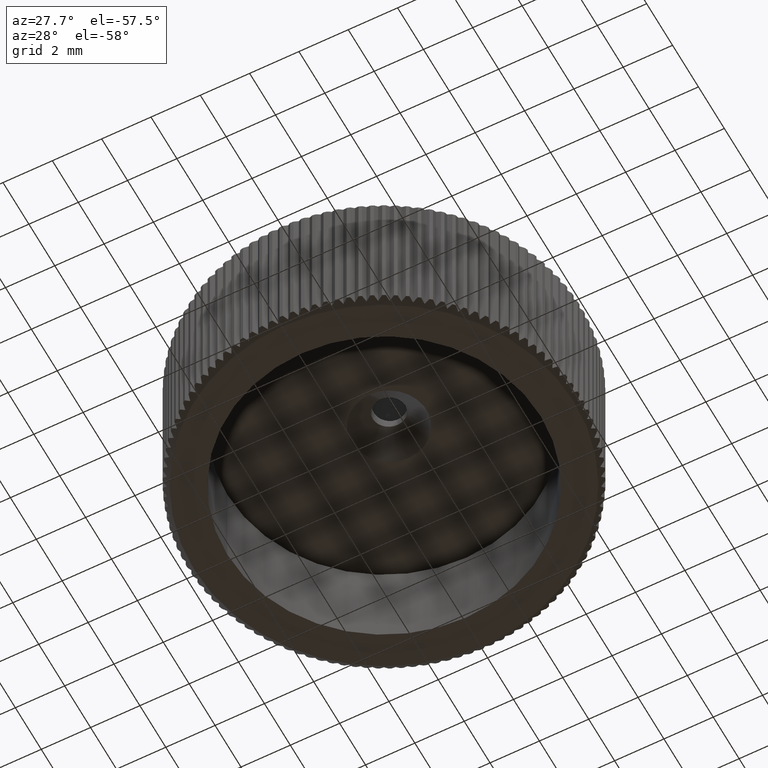
[diagram: clean part render]
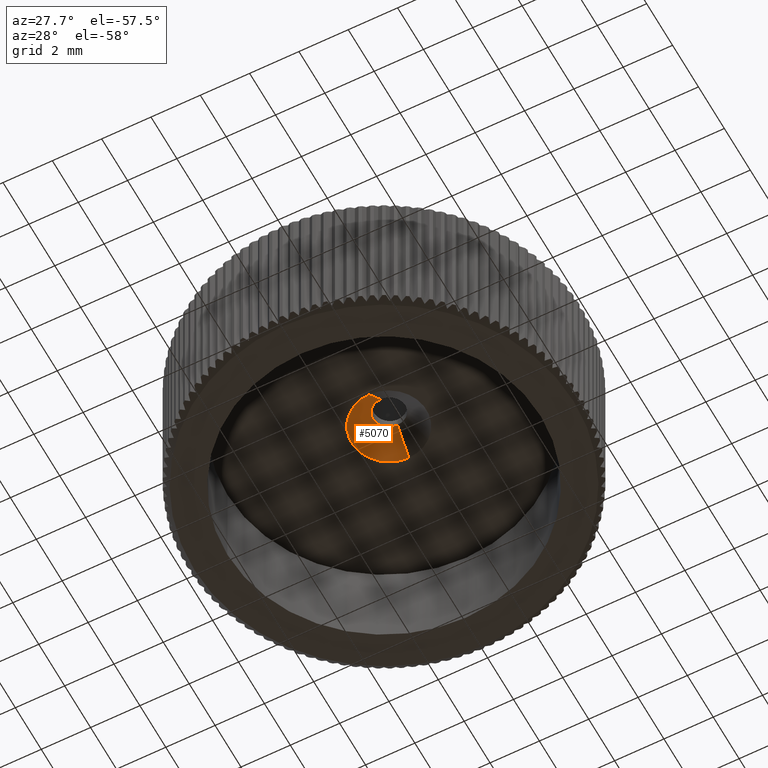
[diagram: same view with one face highlighted and labeled with its STEP entity id]
A machine part, auxiliary view. The second image highlights one B-rep face of the part: STEP entity #5070.
In plain terms, the highlighted face is a freeform B-spline surface patch.
Its self-contained STEP definition (entity closure, byte-faithful):
#199 = CARTESIAN_POINT ( 'NONE',  ( -0.4831640360200000206, -0.04285534067000001252, 5.404672919619999405 ) ) ;
#264 = CARTESIAN_POINT ( 'NONE',  ( -0.3257477400000000078, -0.1843639500000000264, 5.383029033000000574 ) ) ;
#277 = CARTESIAN_POINT ( 'NONE',  ( -0.9258160050000057151, -0.8248952930000076345, 4.499999999999990230 ) ) ;
#330 = CARTESIAN_POINT ( 'NONE',  ( 0.01361364416000012886, -0.2710618730000000642, 5.374928842999999290 ) ) ;
#342 = CARTESIAN_POINT ( 'NONE',  ( -1.317156749000008453, 1.147432791000004837, 4.499999999999989342 ) ) ;
#400 = CARTESIAN_POINT ( 'NONE',  ( -0.5099202332500000212, -0.009948397839999999562, 5.407819684709999741 ) ) ;
#402 = CARTESIAN_POINT ( 'NONE',  ( -0.08647806103030467040, 1.040871319354104596, 5.497502796740137754 ) ) ;
#412 = CARTESIAN_POINT ( 'NONE',  ( -0.3935281660000025661, 1.857795604000008982, 4.499999999999989342 ) ) ;
#470 = CARTESIAN_POINT ( 'NONE',  ( -0.3964935630000001043, -0.1366591860000000158, 5.387486089999999450 ) ) ;
#482 = CARTESIAN_POINT ( 'NONE',  ( -1.364208724000008921, -0.2893749150000043402, 4.499999999999990230 ) ) ;
#601 = CARTESIAN_POINT ( 'NONE',  ( -1.002973238999999905, -0.7614154650000001245, 4.500000000000000888 ) ) ;
#673 = CARTESIAN_POINT ( 'NONE',  ( -1.517755796999999740, 0.4844908510000001112, 4.500000000000000888 ) ) ;
#813 = CARTESIAN_POINT ( 'NONE',  ( -1.002973238999999905, 1.531224911999999660, 4.500000000000000888 ) ) ;
#847 = LINE ( 'NONE', #5192, #7655 ) ;
#923 = VERTEX_POINT ( 'NONE', #13335 ) ;
#1130 = CARTESIAN_POINT ( 'NONE',  ( 4.446201336204454859E-10, -0.7038562900000000511, 4.937464421499999645 ) ) ;
#1151 = B_SPLINE_CURVE_WITH_KNOTS ( 'NONE', 3,
 ( #5729, #402, #4804, #13310, #5937, #10227, #4672, #8953, #13107, #7908, #5801, #4741 ),
 .UNSPECIFIED., .F., .F.,
 ( 4, 2, 2, 2, 2, 4 ),
 ( 5.232432001693966757E-14, 0.0002557314238437535868, 0.0005114628476351827093, 0.001022925695218040738, 0.001534388542800898658, 0.002045851390383757011 ),
 .UNSPECIFIED. ) ;
#1249 = CARTESIAN_POINT ( 'NONE',  ( -0.2066439158800000286, 0.9991548433899999360, 5.504316366400000327 ) ) ;
#1320 = CARTESIAN_POINT ( 'NONE',  ( -0.1662839603700000390, 1.011512219589999706, 5.505498055290000359 ) ) ;
#1333 = CARTESIAN_POINT ( 'NONE',  ( -1.143457594000007127, -0.6205794140000063797, 4.499999999999990230 ) ) ;
#1380 = CARTESIAN_POINT ( 'NONE',  ( -0.04197468998000000728, 1.032215431659999849, 5.507477823960000407 ) ) ;
#1446 = CARTESIAN_POINT ( 'NONE',  ( -0.6458100890000000316, 0.4707692529999999986, 5.444238145000001694 ) ) ;
#1457 = CARTESIAN_POINT ( 'NONE',  ( -0.4890441700000031089, 1.828748604000008937, 4.499999999999989342 ) ) ;
#1518 = CARTESIAN_POINT ( 'NONE',  ( -0.2066439158800000286, -0.2293453953800000666, 5.386839590000000122 ) ) ;
#1590 = CARTESIAN_POINT ( 'NONE',  ( -1.517755796999999740, 0.2853185970000001181, 4.500000000000000888 ) ) ;
#1657 = CARTESIAN_POINT ( 'NONE',  ( -1.317156749000000238, 1.147432790999999952, 4.500000000000000888 ) ) ;
#1722 = CARTESIAN_POINT ( 'NONE',  ( -0.4890441700000000558, -1.058939156999999964, 4.500000000000000888 ) ) ;
#1792 = CARTESIAN_POINT ( 'NONE',  ( -1.143457594000000244, -0.6205794140000001624, 4.500000000000000888 ) ) ;
#1858 = CARTESIAN_POINT ( 'NONE',  ( -1.364208724000000261, -0.2893749150000001769, 4.500000000000000888 ) ) ;
#2226 = CARTESIAN_POINT ( 'NONE',  ( 0.01343190079360012841, -0.2624059846600000356, 5.383678131429999070 ) ) ;
#2295 = CARTESIAN_POINT ( 'NONE',  ( -0.6292107749999999999, 0.2148237840000000176, 5.420325153000000284 ) ) ;
#2362 = CARTESIAN_POINT ( 'NONE',  ( -0.5565600112300002067, 0.7093047243500002486, 5.476599109110000363 ) ) ;
#2372 = CARTESIAN_POINT ( 'NONE',  ( -0.4890441700000031089, -1.058939157000008846, 4.499999999999991118 ) ) ;
#2428 = CARTESIAN_POINT ( 'NONE',  ( -0.08394764348000001430, 1.028042856660000393, 5.507078817399999160 ) ) ;
#2493 = CARTESIAN_POINT ( 'NONE',  ( -0.6458100890000000316, 0.2990401940000000369, 5.428193495000001256 ) ) ;
#2507 = CARTESIAN_POINT ( 'NONE',  ( -1.364208724000008921, 1.059184363000004181, 4.499999999999989342 ) ) ;
#2554 = CARTESIAN_POINT ( 'NONE',  ( -0.4831640360200000206, 0.8126647876700000550, 5.486483036779999267 ) ) ;
#2568 = CARTESIAN_POINT ( 'NONE',  ( -1.440238309000008821, -0.1053637470000030607, 4.499999999999990230 ) ) ;
#2700 = CARTESIAN_POINT ( 'NONE',  ( -0.04254263800000001455, 1.040871319999999933, 5.497502796000000025 ) ) ;
#2769 = CARTESIAN_POINT ( 'NONE',  ( -0.1986707680000000253, -1.126842736000000178, 4.500000000000000888 ) ) ;
#2840 = CARTESIAN_POINT ( 'NONE',  ( -1.143457594000000244, 1.390388861000000364, 4.500000000000000888 ) ) ;
#2903 = CARTESIAN_POINT ( 'NONE',  ( -0.9258160049999999419, -0.8248952930000001960, 4.500000000000000888 ) ) ;
#3300 = ORIENTED_EDGE ( 'NONE', *, *, #5628, .F. ) ;
#3408 = CARTESIAN_POINT ( 'NONE',  ( 0.000000000000000000, -0.2624059846600000356, 5.383678131429999070 ) ) ;
#3476 = CARTESIAN_POINT ( 'NONE',  ( -0.6371884667099999566, 0.4696362169800000763, 5.453680526450001231 ) ) ;
#3546 = CARTESIAN_POINT ( 'NONE',  ( -0.6208107550299999389, 0.5527413389300001034, 5.461627551870000374 ) ) ;
#3559 = CARTESIAN_POINT ( 'NONE',  ( -0.9258160050000057151, 1.594704740000007392, 4.499999999999989342 ) ) ;
#3616 = CARTESIAN_POINT ( 'NONE',  ( -0.4897015960000000723, -0.04857538100000000775, 5.395715761999999138 ) ) ;
#3630 = CARTESIAN_POINT ( 'NONE',  ( -0.6725958260000044486, -0.9827192350000085730, 4.499999999999990230 ) ) ;
#3681 = CARTESIAN_POINT ( 'NONE',  ( -0.5640906720000001817, 0.7136426260000001687, 5.466929810999999972 ) ) ;
#3752 = CARTESIAN_POINT ( 'NONE',  ( -1.469212771999999889, -0.009608623000000001899, 4.500000000000000888 ) ) ;
#3822 = CARTESIAN_POINT ( 'NONE',  ( 0.01589399040000015126, -1.136650707000000038, 4.500000000000000888 ) ) ;
#3963 = CARTESIAN_POINT ( 'NONE',  ( -0.1986707680000000253, 1.896652183000000269, 4.500000000000000888 ) ) ;
#4465 = CARTESIAN_POINT ( 'NONE',  ( -0.3964935630000001043, 0.9064686330000001346, 5.484945549999999059 ) ) ;
#4530 = CARTESIAN_POINT ( 'NONE',  ( -0.5099202332500000212, 0.7797578448399999917, 5.483336271690000707 ) ) ;
#4541 = CARTESIAN_POINT ( 'NONE',  ( -1.469212772000008993, 0.7794180700000024054, 4.499999999999990230 ) ) ;
#4594 = CARTESIAN_POINT ( 'NONE',  ( -0.2880485040000000385, -0.2046995820000000188, 5.381129074000000401 ) ) ;
#4670 = CARTESIAN_POINT ( 'NONE',  ( -0.4295372199999999974, -0.1092920290000000266, 5.390043004000000693 ) ) ;
#4672 = CARTESIAN_POINT ( 'NONE',  ( -0.6499199908030132145, 0.5552829593366771510, 5.452133992614463409 ) ) ;
#4739 = CARTESIAN_POINT ( 'NONE',  ( -0.4238028598100000433, -0.1027707946400000377, 5.398943434040000433 ) ) ;
#4741 = CARTESIAN_POINT ( 'NONE',  ( 6.665951152529660306E-11, -0.2710618728847094538, 5.374928843358858011 ) ) ;
#4752 = CARTESIAN_POINT ( 'NONE',  ( -1.517755797000009066, 0.2853185969999994520, 4.499999999999990230 ) ) ;
#4804 = CARTESIAN_POINT ( 'NONE',  ( -0.1713683753960740797, 1.023528020456982546, 5.495883197922583285 ) ) ;
#4860 = EDGE_LOOP ( 'NONE', ( #8272, #11022, #8404, #3300 ) ) ;
#4884 = B_SPLINE_SURFACE_WITH_KNOTS ( 'NONE', 1, 3, ( 
 ( #11861, #2226, #6517, #3408, #8816, #7972, #7768, #1518, #11001, #11999, #10088, #4739, #199, #400, #13046, #8951, #8750, #13241, #12062, #13104, #7708, #3476, #3546, #10870, #6714, #2362, #4530, #2554, #6647, #5727, #7839, #10940, #1249, #1320, #2428, #1380, #6849 ),
 ( #11136, #330, #8880, #5661, #9946, #5596, #9881, #10014, #4594, #264, #470, #4670, #3616, #11065, #7906, #13172, #12131, #2295, #2493, #12200, #6779, #1446, #5799, #9023, #13308, #3681, #9816, #6586, #5530, #4465, #7132, #10296, #13527, #6922, #12406, #2700, #9084 ),
 ( #11212, #10225, #3822, #9364, #8112, #2769, #7065, #1722, #11420, #11489, #2903, #601, #1792, #7198, #12474, #1858, #11348, #3752, #6146, #1590, #673, #6005, #6997, #11278, #10435, #1657, #4952, #2840, #813, #8249, #5021, #9230, #10162, #8045, #3963, #6077, #12541 ) ),
 .UNSPECIFIED., .F., .F., .F.,
 ( 2, 1, 2 ),
 ( 4, 3, 2, 2, 2, 2, 2, 2, 2, 2, 2, 2, 2, 2, 2, 2, 2, 4 ),
 ( -0.01000000000000000021, 0.000000000000000000, 1.000000000000000000 ),
 ( -3.173008580125687761, -3.141592653589790007, -2.945243112740429936, -2.748893571891070753, -2.552544031041709793, -2.356194490192339952, -2.159844949342979881, -1.963495408493619809, -1.767145867644260182, -1.570796326794899889, -1.374446785945530047, -1.178097245096169976, -0.9817477042468100157, -0.7853981633974479459, -0.5890486225480863203, -0.3926990816987240285, -0.1963495408493620697, 0.000000000000000000 ),
 .UNSPECIFIED. ) ;
#4952 = CARTESIAN_POINT ( 'NONE',  ( -1.206778899000000127, 1.313038466999999931, 4.500000000000000888 ) ) ;
#5021 = CARTESIAN_POINT ( 'NONE',  ( -0.7606238790000001693, 1.705358915000000142, 4.500000000000000888 ) ) ;
#5070 = ADVANCED_FACE ( 'NONE', ( #9673 ), #4884, .T. ) ;
#5192 = CARTESIAN_POINT ( 'NONE',  ( 1.946543688953417256E-10, 1.473665736999999920, 4.998751398000002233 ) ) ;
#5472 = CARTESIAN_POINT ( 'NONE',  ( 1.635448778725282072E-10, 1.906460154000000351, 4.500000000000000888 ) ) ;
#5530 = CARTESIAN_POINT ( 'NONE',  ( -0.4295372199999999974, 0.8791014760000002148, 5.482388635999999593 ) ) ;
#5540 = CARTESIAN_POINT ( 'NONE',  ( -1.507972318000009304, 0.5840728550000013897, 4.499999999999990230 ) ) ;
#5596 = CARTESIAN_POINT ( 'NONE',  ( -0.08508351600000001180, -0.2668335010000000285, 5.375323900000000599 ) ) ;
#5611 = CARTESIAN_POINT ( 'NONE',  ( -1.507972318000009304, 0.1857365919999988124, 4.499999999999990230 ) ) ;
#5628 = EDGE_CURVE ( 'NONE', #923, #10312, #13065, .T. ) ;
#5661 = CARTESIAN_POINT ( 'NONE',  ( 0.000000000000000000, -0.2710618730000000642, 5.374928842999999290 ) ) ;
#5674 = CARTESIAN_POINT ( 'NONE',  ( -1.517755797000009066, 0.4844908510000006663, 4.499999999999990230 ) ) ;
#5727 = CARTESIAN_POINT ( 'NONE',  ( -0.3912003385800000843, 0.8995862719300000698, 5.494795005499999441 ) ) ;
#5729 = CARTESIAN_POINT ( 'NONE',  ( -7.495025782752232543E-11, 1.040871319357137947, 5.497502796547943937 ) ) ;
#5739 = CARTESIAN_POINT ( 'NONE',  ( -0.1986707680000012743, 1.896652183000009595, 4.499999999999989342 ) ) ;
#5799 = CARTESIAN_POINT ( 'NONE',  ( -0.6292107749999999999, 0.5549856630000000735, 5.452106487000000001 ) ) ;
#5801 = CARTESIAN_POINT ( 'NONE',  ( -0.1729579338301115710, -0.2710618728303192393, 5.374928843171509207 ) ) ;
#5880 = CARTESIAN_POINT ( 'NONE',  ( 1.635448778725282072E-10, 1.906460154000000351, 4.500000000000000888 ) ) ;
#5937 = CARTESIAN_POINT ( 'NONE',  ( -0.4014920855287459900, 0.9078210053432419491, 5.485072900179750022 ) ) ;
#6005 = CARTESIAN_POINT ( 'NONE',  ( -1.507972317999999756, 0.5840728550000000574, 4.500000000000000888 ) ) ;
#6077 = CARTESIAN_POINT ( 'NONE',  ( -0.09933744000000002683, 1.906460154000000129, 4.500000000000000888 ) ) ;
#6146 = CARTESIAN_POINT ( 'NONE',  ( -1.507972317999999756, 0.1857365920000000337, 4.500000000000000888 ) ) ;
#6517 = CARTESIAN_POINT ( 'NONE',  ( 0.006715950396800064205, -0.2624059846600000356, 5.383678131429999070 ) ) ;
#6586 = CARTESIAN_POINT ( 'NONE',  ( -0.4897015960000000723, 0.8183848280000001196, 5.476715877999999371 ) ) ;
#6596 = CARTESIAN_POINT ( 'NONE',  ( -1.469212772000008993, -0.009608623000002446124, 4.499999999999990230 ) ) ;
#6647 = CARTESIAN_POINT ( 'NONE',  ( -0.4238028598100000433, 0.8725802416400002537, 5.492212522360000015 ) ) ;
#6660 = CARTESIAN_POINT ( 'NONE',  ( -1.002973239000006123, -0.7614154650000071189, 4.499999999999990230 ) ) ;
#6714 = CARTESIAN_POINT ( 'NONE',  ( -0.5764416590900001136, 0.6717614637100001174, 5.473008990379999439 ) ) ;
#6779 = CARTESIAN_POINT ( 'NONE',  ( -0.6500000000000001332, 0.4278378770000000886, 5.440227066000000278 ) ) ;
#6792 = CARTESIAN_POINT ( 'NONE',  ( -0.7606238790000048322, 1.705358915000008357, 4.499999999999989342 ) ) ;
#6849 = CARTESIAN_POINT ( 'NONE',  ( 0.000000000000000000, 1.032215431659999849, 5.507477823960000407 ) ) ;
#6859 = CARTESIAN_POINT ( 'NONE',  ( -1.143457594000007127, 1.390388861000006804, 4.499999999999989342 ) ) ;
#6917 = VERTEX_POINT ( 'NONE', #7391 ) ;
#6922 = CARTESIAN_POINT ( 'NONE',  ( -0.1685339030000000404, 1.019891262999999659, 5.495542629000000900 ) ) ;
#6997 = CARTESIAN_POINT ( 'NONE',  ( -1.469212771999999889, 0.7794180699999999629, 4.500000000000000888 ) ) ;
#7065 = CARTESIAN_POINT ( 'NONE',  ( -0.3935281660000001236, -1.087986155999999927, 4.500000000000000888 ) ) ;
#7132 = CARTESIAN_POINT ( 'NONE',  ( -0.3257477400000000078, 0.9541733970000000342, 5.489402607000000600 ) ) ;
#7198 = CARTESIAN_POINT ( 'NONE',  ( -1.206778899000000127, -0.5432290200000000624, 4.500000000000000888 ) ) ;
#7391 = CARTESIAN_POINT ( 'NONE',  ( -7.495025782752232543E-11, 1.040871319357137947, 5.497502796547943937 ) ) ;
#7655 = VECTOR ( 'NONE', #13696, 1000.000000000000114 ) ;
#7708 = CARTESIAN_POINT ( 'NONE',  ( -0.6413224420300002171, 0.4272713472600001006, 5.449629336660000156 ) ) ;
#7768 = CARTESIAN_POINT ( 'NONE',  ( -0.1662839603700000390, -0.2417027726000000321, 5.385657901110000090 ) ) ;
#7839 = CARTESIAN_POINT ( 'NONE',  ( -0.3213989786100000523, 0.9466615418199999521, 5.499296633070001050 ) ) ;
#7906 = CARTESIAN_POINT ( 'NONE',  ( -0.5640906720000001817, 0.05616682100000001954, 5.405501828999999425 ) ) ;
#7908 = CARTESIAN_POINT ( 'NONE',  ( -0.3407060424218243955, -0.1999224796006416061, 5.381577494943265094 ) ) ;
#7972 = CARTESIAN_POINT ( 'NONE',  ( -0.08394764348000001430, -0.2582334086500000514, 5.384077139000000400 ) ) ;
#8045 = CARTESIAN_POINT ( 'NONE',  ( -0.3935281660000001236, 1.857795603999999878, 4.500000000000000888 ) ) ;
#8112 = CARTESIAN_POINT ( 'NONE',  ( -0.09933744000000002683, -1.136650707000000038, 4.500000000000000888 ) ) ;
#8223 = VERTEX_POINT ( 'NONE', #5472 ) ;
#8249 = CARTESIAN_POINT ( 'NONE',  ( -0.9258160049999999419, 1.594704739999999843, 4.500000000000000888 ) ) ;
#8272 = ORIENTED_EDGE ( 'NONE', *, *, #8287, .T. ) ;
#8287 = EDGE_CURVE ( 'NONE', #923, #8223, #11451, .T. ) ;
#8404 = ORIENTED_EDGE ( 'NONE', *, *, #12471, .T. ) ;
#8750 = CARTESIAN_POINT ( 'NONE',  ( -0.6085676964999999772, 0.1763312968400000680, 5.425632899170000023 ) ) ;
#8816 = CARTESIAN_POINT ( 'NONE',  ( -0.04197468998000000728, -0.2624059846600000356, 5.383678131429999070 ) ) ;
#8880 = CARTESIAN_POINT ( 'NONE',  ( 0.006806822080000064432, -0.2710618730000000642, 5.374928842999999290 ) ) ;
#8891 = CARTESIAN_POINT ( 'NONE',  ( -1.206778899000007677, 1.313038467000005927, 4.499999999999989342 ) ) ;
#8951 = CARTESIAN_POINT ( 'NONE',  ( -0.5764416590900001136, 0.09804798328000004226, 5.418146966020000121 ) ) ;
#8953 = CARTESIAN_POINT ( 'NONE',  ( -0.6500798619496706010, 0.2151487872770291576, 5.420355789439178729 ) ) ;
#9023 = CARTESIAN_POINT ( 'NONE',  ( -0.6168020590000000691, 0.5962672110000000192, 5.455963423000000923 ) ) ;
#9084 = CARTESIAN_POINT ( 'NONE',  ( 0.000000000000000000, 1.040871319999999933, 5.497502796000000025 ) ) ;
#9230 = CARTESIAN_POINT ( 'NONE',  ( -0.6725958260000002298, 1.752528682999999976, 4.500000000000000888 ) ) ;
#9242 = CARTESIAN_POINT ( 'NONE',  ( -0.09933744000000065133, 1.906460154000009677, 4.499999999999989342 ) ) ;
#9364 = CARTESIAN_POINT ( 'NONE',  ( 0.000000000000000000, -1.136650707000000038, 4.500000000000000888 ) ) ;
#9673 = FACE_OUTER_BOUND ( 'NONE', #4860, .T. ) ;
#9694 = DIRECTION ( 'NONE',  ( -2.892255117968239041E-10, 0.7033021610901608600, 0.7108910396157130940 ) ) ;
#9816 = CARTESIAN_POINT ( 'NONE',  ( -0.5168198240000000387, 0.7850378510000000087, 5.473600269000000296 ) ) ;
#9881 = CARTESIAN_POINT ( 'NONE',  ( -0.1685339030000000404, -0.2500818160000000123, 5.376889011000000274 ) ) ;
#9946 = CARTESIAN_POINT ( 'NONE',  ( -0.04254263800000001455, -0.2710618730000000642, 5.374928842999999290 ) ) ;
#9957 = CARTESIAN_POINT ( 'NONE',  ( -0.1986707680000012743, -1.126842736000009726, 4.499999999999991118 ) ) ;
#10014 = CARTESIAN_POINT ( 'NONE',  ( -0.2094399580000000372, -0.2375591950000000285, 5.378059000000000367 ) ) ;
#10027 = CARTESIAN_POINT ( 'NONE',  ( -1.317156749000008453, -0.3776233430000047742, 4.499999999999990230 ) ) ;
#10053 = VECTOR ( 'NONE', #9694, 1000.000000000000000 ) ;
#10088 = CARTESIAN_POINT ( 'NONE',  ( -0.3912003385800000843, -0.1297768249300000065, 5.396360950899998343 ) ) ;
#10100 = CARTESIAN_POINT ( 'NONE',  ( -0.09933744000000065133, -1.136650707000009364, 4.499999999999991118 ) ) ;
#10138 = CARTESIAN_POINT ( 'NONE',  ( 6.665951152529660306E-11, -0.2710618728847094538, 5.374928843358858011 ) ) ;
#10162 = CARTESIAN_POINT ( 'NONE',  ( -0.4890441700000000558, 1.828748604000000055, 4.500000000000000888 ) ) ;
#10225 = CARTESIAN_POINT ( 'NONE',  ( 0.03178798080000030252, -1.136650707000000038, 4.500000000000000888 ) ) ;
#10227 = CARTESIAN_POINT ( 'NONE',  ( -0.5806815927496679075, 0.7257187943688956366, 5.468056053429018348 ) ) ;
#10296 = CARTESIAN_POINT ( 'NONE',  ( -0.2880485040000000385, 0.9745090299999999983, 5.491302565999999885 ) ) ;
#10312 = VERTEX_POINT ( 'NONE', #10138 ) ;
#10435 = CARTESIAN_POINT ( 'NONE',  ( -1.364208724000000261, 1.059184362999999962, 4.500000000000000888 ) ) ;
#10870 = CARTESIAN_POINT ( 'NONE',  ( -0.6085676964999999772, 0.5934781511700000234, 5.465523057230001314 ) ) ;
#10919 = EDGE_CURVE ( 'NONE', #6917, #8223, #847, .T. ) ;
#10940 = CARTESIAN_POINT ( 'NONE',  ( -0.2842030307800000322, 0.9667288334699999375, 5.501215591660000293 ) ) ;
#11001 = CARTESIAN_POINT ( 'NONE',  ( -0.2842030307800000322, -0.1969193854700000412, 5.389940364740000156 ) ) ;
#11016 = CARTESIAN_POINT ( 'NONE',  ( -0.3935281660000025661, -1.087986156000009030, 4.499999999999991118 ) ) ;
#11022 = ORIENTED_EDGE ( 'NONE', *, *, #10919, .F. ) ;
#11065 = CARTESIAN_POINT ( 'NONE',  ( -0.5168198240000000387, -0.01522840400000000094, 5.398831370999999990 ) ) ;
#11077 = CARTESIAN_POINT ( 'NONE',  ( -0.6725958260000044486, 1.752528683000008414, 4.499999999999989342 ) ) ;
#11136 = CARTESIAN_POINT ( 'NONE',  ( 0.02042046624000019503, -0.2710618730000000642, 5.374928842999999290 ) ) ;
#11212 = CARTESIAN_POINT ( 'NONE',  ( 0.04768197120000045724, -1.136650707000000038, 4.500000000000000888 ) ) ;
#11278 = CARTESIAN_POINT ( 'NONE',  ( -1.440238308999999939, 0.8751731940000000431, 4.500000000000000888 ) ) ;
#11348 = CARTESIAN_POINT ( 'NONE',  ( -1.440238308999999939, -0.1053637470000000215, 4.500000000000000888 ) ) ;
#11420 = CARTESIAN_POINT ( 'NONE',  ( -0.6725958260000002298, -0.9827192350000001353, 4.500000000000000888 ) ) ;
#11451 = B_SPLINE_CURVE_WITH_KNOTS ( 'NONE', 3,
 ( #12077, #10100, #9957, #11016, #2372, #3630, #12212, #277, #6660, #1333, #11943, #10027, #482, #2568, #6596, #5611, #4752, #5674, #5540, #4541, #13116, #2507, #342, #8891, #6859, #13184, #3559, #6792, #11077, #1457, #412, #5739, #9242, #5880 ),
 .UNSPECIFIED., .F., .F.,
 ( 4, 2, 2, 2, 2, 2, 2, 2, 2, 2, 2, 2, 2, 2, 2, 2, 4 ),
 ( 1.841302858273430668E-13, 0.0002968991008659918737, 0.0005937982012997417231, 0.0008906973017334942830, 0.001187596402167260395, 0.001484495502601011763, 0.001781394603034762913, 0.002078293703468513630, 0.002375192803902265431, 0.002672091904336031543, 0.002968991004769782477, 0.003265890105203533410, 0.003562789205637288247, 0.003859688306071041349, 0.004156587406504795752, 0.004453486506938550589, 0.004750385607372304558 ),
 .UNSPECIFIED. ) ;
#11489 = CARTESIAN_POINT ( 'NONE',  ( -0.7606238790000001693, -0.9355494680000001617, 4.500000000000000888 ) ) ;
#11861 = CARTESIAN_POINT ( 'NONE',  ( 0.02014785119040019348, -0.2624059846600000356, 5.383678131429999070 ) ) ;
#11943 = CARTESIAN_POINT ( 'NONE',  ( -1.206778899000007677, -0.5432290200000057245, 4.499999999999990230 ) ) ;
#11999 = CARTESIAN_POINT ( 'NONE',  ( -0.3213989786100000523, -0.1768520948200000276, 5.391859323330000286 ) ) ;
#12062 = CARTESIAN_POINT ( 'NONE',  ( -0.6371884667099999566, 0.3001732300200000148, 5.437475429950001882 ) ) ;
#12077 = CARTESIAN_POINT ( 'NONE',  ( 4.358214197649421204E-10, -1.136650707000000038, 4.500000000000000888 ) ) ;
#12131 = CARTESIAN_POINT ( 'NONE',  ( -0.6168020590000000691, 0.1735422370000000436, 5.416468217000000251 ) ) ;
#12200 = CARTESIAN_POINT ( 'NONE',  ( -0.6500000000000001332, 0.3419715700000001135, 5.432204574000000008 ) ) ;
#12212 = CARTESIAN_POINT ( 'NONE',  ( -0.7606238790000048322, -0.9355494680000082663, 4.499999999999990230 ) ) ;
#12406 = CARTESIAN_POINT ( 'NONE',  ( -0.08508351600000001180, 1.036642949000000202, 5.497107739999999687 ) ) ;
#12471 = EDGE_CURVE ( 'NONE', #6917, #10312, #1151, .T. ) ;
#12474 = CARTESIAN_POINT ( 'NONE',  ( -1.317156749000000238, -0.3776233430000000557, 4.500000000000000888 ) ) ;
#12541 = CARTESIAN_POINT ( 'NONE',  ( 0.000000000000000000, 1.906460154000000129, 4.500000000000000888 ) ) ;
#13046 = CARTESIAN_POINT ( 'NONE',  ( -0.5565600112300002067, 0.06050472264000002209, 5.414556847289999197 ) ) ;
#13065 = LINE ( 'NONE', #1130, #10053 ) ;
#13104 = CARTESIAN_POINT ( 'NONE',  ( -0.6413224420300002171, 0.3425380997300001007, 5.441526619740000292 ) ) ;
#13107 = CARTESIAN_POINT ( 'NONE',  ( -0.5822495227939062934, 0.04582116257766369327, 5.404533104850506753 ) ) ;
#13116 = CARTESIAN_POINT ( 'NONE',  ( -1.440238309000008821, 0.8751731940000030407, 4.499999999999990230 ) ) ;
#13172 = CARTESIAN_POINT ( 'NONE',  ( -0.5842413330000001404, 0.09421211300000004174, 5.409056402000000929 ) ) ;
#13184 = CARTESIAN_POINT ( 'NONE',  ( -1.002973239000006123, 1.531224912000006766, 4.499999999999989342 ) ) ;
#13241 = CARTESIAN_POINT ( 'NONE',  ( -0.6208107550299999389, 0.2170681080699999876, 5.429528404530000074 ) ) ;
#13308 = CARTESIAN_POINT ( 'NONE',  ( -0.5842413330000001404, 0.6755973340000001048, 5.463375237999999356 ) ) ;
#13310 = CARTESIAN_POINT ( 'NONE',  ( -0.3292960460426723190, 0.9570170777788669092, 5.489667491939884236 ) ) ;
#13335 = CARTESIAN_POINT ( 'NONE',  ( 4.358214197649421204E-10, -1.136650707000000038, 4.500000000000000888 ) ) ;
#13527 = CARTESIAN_POINT ( 'NONE',  ( -0.2094399580000000372, 1.007368642999999730, 5.494372639999999919 ) ) ;
#13696 = DIRECTION ( 'NONE',  ( 1.179984296121819966E-10, 0.6554001710570198647, -0.7552818121591629019 ) ) ;